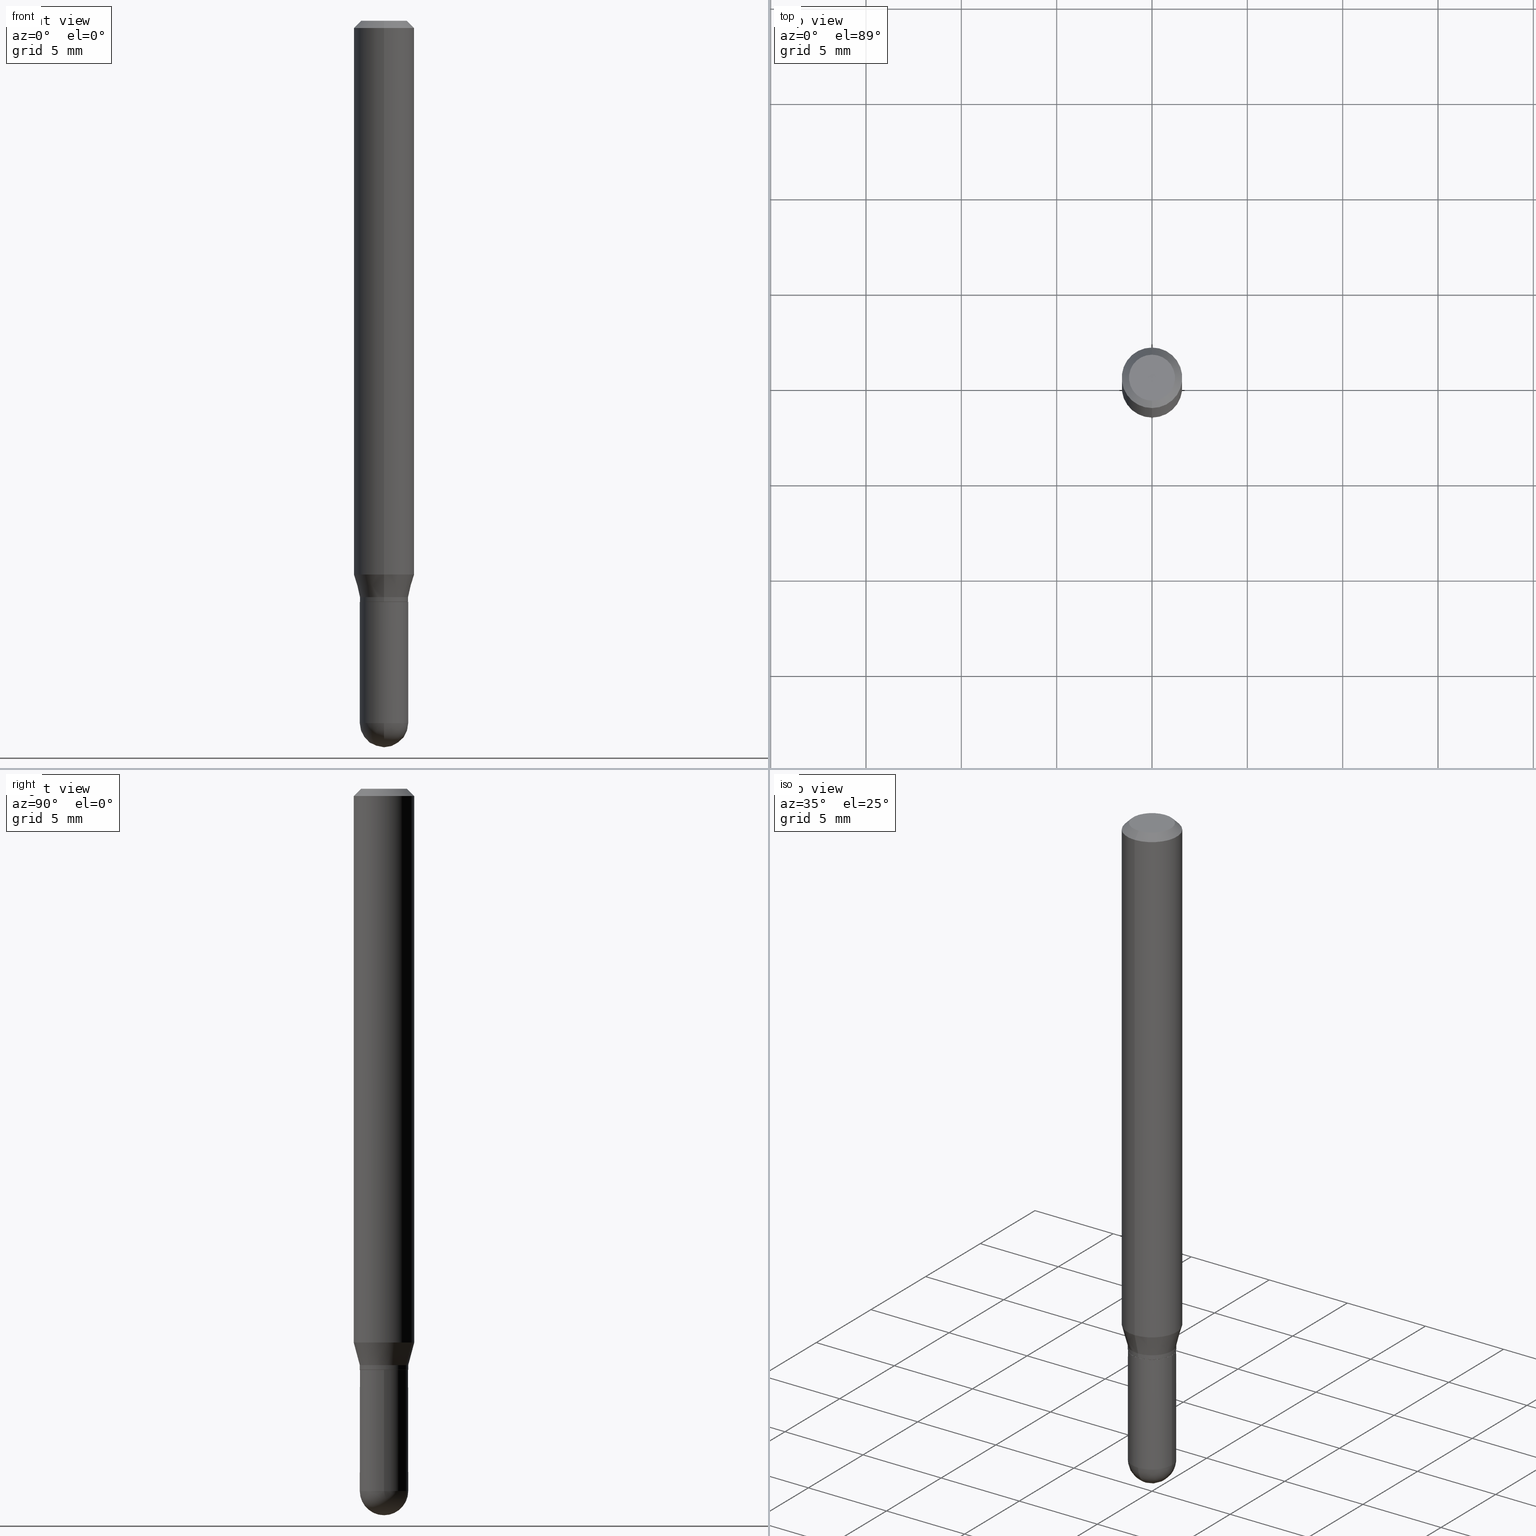
[diagram: canonical four-view strip — front | top / right | iso, engineering-drawing reading convention]
A machine part, canonical four-view strip (front | top / right | iso — engineering-drawing reading convention). The complete STEP part file that produces these views, byte-faithful:
ISO-10303-21;
HEADER;
FILE_DESCRIPTION (( 'STEP AP203' ),
    '1' );
FILE_NAME ('04449.STEP',
    '2024-03-08T19:38:17',
    ( '' ),
    ( '' ),
    'SwSTEP 2.0',
    'SolidWorks 2023',
    '' );
FILE_SCHEMA (( 'CONFIG_CONTROL_DESIGN' ));
ENDSEC;

DATA;
#1 = APPLICATION_CONTEXT ( 'configuration controlled 3d designs of mechanical parts and assemblies' ) ;
#2 = ADVANCED_FACE ( 'NONE', ( #111 ), #346, .T. ) ;
#3 = ORIENTED_EDGE ( 'NONE', *, *, #288, .F. ) ;
#4 = FACE_OUTER_BOUND ( 'NONE', #186, .T. ) ;
#5 = LINE ( 'NONE', #118, #454 ) ;
#6 = CIRCLE ( 'NONE', #475, 0.04999999999999999584 ) ;
#7 = EDGE_CURVE ( 'NONE', #503, #153, #67, .T. ) ;
#8 = VERTEX_POINT ( 'NONE', #463 ) ;
#9 = ORIENTED_EDGE ( 'NONE', *, *, #297, .F. ) ;
#10 = DIRECTION ( 'NONE',  ( -2.445402867913384779E-29, 3.491575766201267725E-15, 1.000000000000000000 ) ) ;
#11 = EDGE_LOOP ( 'NONE', ( #486, #381 ) ) ;
#12 = ORIENTED_EDGE ( 'NONE', *, *, #362, .T. ) ;
#13 = DIRECTION ( 'NONE',  ( -6.982962677686265133E-15, -1.000000000000000000, 5.463695987328524859E-15 ) ) ;
#14 = CIRCLE ( 'NONE', #175, 0.05000000000000006523 ) ;
#15 = CIRCLE ( 'NONE', #54, 0.04999999999999999584 ) ;
#16 = FACE_OUTER_BOUND ( 'NONE', #61, .T. ) ;
#17 = ORIENTED_EDGE ( 'NONE', *, *, #41, .T. ) ;
#18 = DIRECTION ( 'NONE',  ( -2.445402867913384779E-29, 3.491575766201267725E-15, 1.000000000000000000 ) ) ;
#19 = DATE_AND_TIME ( #98, #214 ) ;
#20 = DIRECTION ( 'NONE',  ( 1.000000000000000000, -6.982962677686275388E-15, 0.000000000000000000 ) ) ;
#21 = ADVANCED_FACE ( 'NONE', ( #102 ), #421, .T. ) ;
#22 = CONICAL_SURFACE ( 'NONE', #412, 0.05000000000000006523, 0.2617993877991506846 ) ;
#23 = ORIENTED_EDGE ( 'NONE', *, *, #173, .T. ) ;
#24 = DIRECTION ( 'NONE',  ( 0.000000000000000000, 0.000000000000000000, 1.000000000000000000 ) ) ;
#25 = PERSON_AND_ORGANIZATION ( #278, #31 ) ;
#26 = PERSON_AND_ORGANIZATION_ROLE ( 'design_owner' ) ;
#27 = APPROVAL_DATE_TIME ( #19, #141 ) ;
#28 = EDGE_CURVE ( 'NONE', #380, #303, #374, .T. ) ;
#29 = APPROVAL_PERSON_ORGANIZATION ( #429, #162, #195 ) ;
#30 = ADVANCED_FACE ( 'NONE', ( #259 ), #76, .T. ) ;
#31 = ORGANIZATION ( 'UNSPECIFIED', 'UNSPECIFIED', '' ) ;
#32 = DIRECTION ( 'NONE',  ( 5.024295867788190974E-15, 0.7071067811865681119, 0.7071067811865270336 ) ) ;
#33 = COORDINATED_UNIVERSAL_TIME_OFFSET ( 5, 0, .BEHIND. ) ;
#34 = VERTEX_POINT ( 'NONE', #46 ) ;
#35 = DIRECTION ( 'NONE',  ( 1.000000000000000000, -6.982962677686275388E-15, 0.000000000000000000 ) ) ;
#36 = AXIS2_PLACEMENT_3D ( 'NONE', #135, #296, #87 ) ;
#37 = DIRECTION ( 'NONE',  ( -4.937700262164674260E-15, -0.7071067811865632269, 0.7071067811865319186 ) ) ;
#38 = CARTESIAN_POINT ( 'NONE',  ( 1.601634918364404677E-45, -2.286833691347816108E-31, -6.549574875288539984E-17 ) ) ;
#39 = CARTESIAN_POINT ( 'NONE',  ( 3.552713678800795963E-16, 0.04999999999999590883, -1.190000000000000391 ) ) ;
#40 = DIRECTION ( 'NONE',  ( -2.445402867913384779E-29, 3.491575766201267725E-15, 1.000000000000000000 ) ) ;
#41 = EDGE_CURVE ( 'NONE', #42, #382, #210, .T. ) ;
#42 = VERTEX_POINT ( 'NONE', #448 ) ;
#43 = DIRECTION ( 'NONE',  ( -2.445402867913384779E-29, 3.491575766201267725E-15, 1.000000000000000000 ) ) ;
#44 = CARTESIAN_POINT ( 'NONE',  ( -0.04999999999999999584, 3.552713678800500634E-16, -2.459467545127452961E-30 ) ) ;
#45 = ORIENTED_EDGE ( 'NONE', *, *, #508, .F. ) ;
#46 = CARTESIAN_POINT ( 'NONE',  ( 3.534950110406793936E-16, 0.04949999999999581124, -1.200000000000000400 ) ) ;
#47 = LOCAL_TIME ( 14, 38, 17.00000000000000000, #33 ) ;
#48 = ORIENTED_EDGE ( 'NONE', *, *, #41, .F. ) ;
#49 = COORDINATED_UNIVERSAL_TIME_OFFSET ( 5, 0, .BEHIND. ) ;
#50 = ADVANCED_FACE ( 'NONE', ( #400 ), #326, .T. ) ;
#51 = PERSON_AND_ORGANIZATION ( #278, #31 ) ;
#52 = DIRECTION ( 'NONE',  ( -2.445468806185136597E-29, 3.491481338843145583E-15, 1.000000000000000000 ) ) ;
#53 = AXIS2_PLACEMENT_3D ( 'NONE', #56, #200, #137 ) ;
#54 = AXIS2_PLACEMENT_3D ( 'NONE', #359, #324, #330 ) ;
#55 = ORIENTED_EDGE ( 'NONE', *, *, #362, .F. ) ;
#56 = CARTESIAN_POINT ( 'NONE',  ( 0.000000000000000000, 0.000000000000000000, 0.000000000000000000 ) ) ;
#57 =( LENGTH_UNIT ( ) NAMED_UNIT ( * ) SI_UNIT ( $, .METRE. ) );
#58 = ADVANCED_FACE ( 'NONE', ( #289 ), #406, .T. ) ;
#59 = DIRECTION ( 'NONE',  ( 1.000000000000000000, 0.000000000000000000, 0.000000000000000000 ) ) ;
#60 = CLOSED_SHELL ( 'NONE', ( #21, #30, #372, #50, #440, #310, #398, #239, #158, #129, #261, #461 ) ) ;
#61 = EDGE_LOOP ( 'NONE', ( #365, #231, #395, #136 ) ) ;
#62 = VECTOR ( 'NONE', #294, 39.37007874015748143 ) ;
#63 = CARTESIAN_POINT ( 'NONE',  ( 3.552713678800795963E-16, 0.04999999999999583944, -1.199500000000000233 ) ) ;
#64 = PRODUCT_RELATED_PRODUCT_CATEGORY ( 'detail', '', ( #108 ) ) ;
#65 = ORIENTED_EDGE ( 'NONE', *, *, #225, .T. ) ;
#66 = DIRECTION ( 'NONE',  ( -2.445402867913384779E-29, 3.491575766201267725E-15, 1.000000000000000000 ) ) ;
#67 = CIRCLE ( 'NONE', #401, 0.06250000000000000000 ) ;
#68 = CIRCLE ( 'NONE', #402, 0.04999999999999999584 ) ;
#69 = LINE ( 'NONE', #157, #312 ) ;
#70 = CARTESIAN_POINT ( 'NONE',  ( 2.910029412816928193E-29, -4.154975161779508885E-15, -1.190000000000000169 ) ) ;
#71 = CARTESIAN_POINT ( 'NONE',  ( 4.440892098500907193E-16, 0.06249999999999995143, -0.01500000000000028394 ) ) ;
#72 = DIRECTION ( 'NONE',  ( -6.982962677686265133E-15, -1.000000000000000000, 2.731847993664259669E-15 ) ) ;
#73 = EDGE_LOOP ( 'NONE', ( #280, #12, #456, #45 ) ) ;
#74 = ORIENTED_EDGE ( 'NONE', *, *, #479, .F. ) ;
#75 = EDGE_CURVE ( 'NONE', #169, #442, #165, .T. ) ;
#76 = CONICAL_SURFACE ( 'NONE', #446, 0.04950000000000000233, 0.7853981633974739252 ) ;
#77 = DIRECTION ( 'NONE',  ( 6.982962677686265922E-15, 1.000000000000000000, -3.483106191921935554E-15 ) ) ;
#78 = CIRCLE ( 'NONE', #140, 0.05000000000000000278 ) ;
#79 = DIRECTION ( 'NONE',  ( -6.982962677686265922E-15, -1.000000000000000000, 3.483106191921935554E-15 ) ) ;
#80 = DIRECTION ( 'NONE',  ( -2.445402867913384779E-29, 3.491575766201267725E-15, 1.000000000000000000 ) ) ;
#81 = CARTESIAN_POINT ( 'NONE',  ( 0.000000000000000000, 0.000000000000000000, 0.000000000000000000 ) ) ;
#82 = CC_DESIGN_APPROVAL ( #162, ( #287 ) ) ;
#83 = CARTESIAN_POINT ( 'NONE',  ( 3.545929768968448850E-29, -5.062647941322561509E-15, -1.450000000000000178 ) ) ;
#84 = EDGE_CURVE ( 'NONE', #303, #380, #14, .T. ) ;
#85 = ORIENTED_EDGE ( 'NONE', *, *, #445, .T. ) ;
#86 = CARTESIAN_POINT ( 'NONE',  ( 3.541653937522551347E-29, -5.068771175318297793E-15, -1.450000000000000178 ) ) ;
#87 = DIRECTION ( 'NONE',  ( -6.982962677686265922E-15, -1.000000000000000000, 3.491575766201267725E-15 ) ) ;
#88 = CARTESIAN_POINT ( 'NONE',  ( 3.668104301870093617E-31, -5.237363649301924489E-17, -0.01500000000000006710 ) ) ;
#89 = ORIENTED_EDGE ( 'NONE', *, *, #150, .F. ) ;
#90 = CARTESIAN_POINT ( 'NONE',  ( -4.287811248607203282E-16, -0.06250000000000005551, -0.01499999999999984852 ) ) ;
#91 = ORIENTED_EDGE ( 'NONE', *, *, #495, .F. ) ;
#92 = CARTESIAN_POINT ( 'NONE',  ( 2.933260740062105209E-29, -4.188145131558421653E-15, -1.199500000000000233 ) ) ;
#93 = CIRCLE ( 'NONE', #238, 0.05000000000000000971 ) ;
#94 = EDGE_CURVE ( 'NONE', #351, #407, #93, .T. ) ;
#95 = DIRECTION ( 'NONE',  ( 2.445402867913384779E-29, -3.491575766201267725E-15, -1.000000000000000000 ) ) ;
#96 = LOCAL_TIME ( 14, 38, 17.00000000000000000, #49 ) ;
#97 = DIMENSIONAL_EXPONENTS ( 1.000000000000000000, 0.000000000000000000, 0.000000000000000000, 0.000000000000000000, 0.000000000000000000, 0.000000000000000000, 0.000000000000000000 ) ;
#98 = CALENDAR_DATE ( 2024, 8, 3 ) ;
#99 = CALENDAR_DATE ( 2024, 8, 3 ) ;
#100 = EDGE_LOOP ( 'NONE', ( #423, #201, #510, #366 ) ) ;
#101 = AXIS2_PLACEMENT_3D ( 'NONE', #316, #430, #437 ) ;
#102 = FACE_OUTER_BOUND ( 'NONE', #73, .T. ) ;
#103 = ORIENTED_EDGE ( 'NONE', *, *, #344, .T. ) ;
#104 = ORIENTED_EDGE ( 'NONE', *, *, #283, .T. ) ;
#105 = APPROVAL_STATUS ( 'not_yet_approved' ) ;
#106 = ORIENTED_EDGE ( 'NONE', *, *, #225, .F. ) ;
#107 = EDGE_CURVE ( 'NONE', #228, #279, #166, .T. ) ;
#108 = PRODUCT ( '04449', '04449', '', ( #302 ) ) ;
#109 = PERSON_AND_ORGANIZATION ( #278, #31 ) ;
#110 =( CONVERSION_BASED_UNIT ( 'INCH', #388 ) LENGTH_UNIT ( ) NAMED_UNIT ( #97 ) );
#111 = FACE_OUTER_BOUND ( 'NONE', #268, .T. ) ;
#112 = CONICAL_SURFACE ( 'NONE', #272, 0.06250000000000000000, 0.7853981633974483900 ) ;
#113 = EDGE_CURVE ( 'NONE', #120, #407, #68, .T. ) ;
#114 = PRODUCT_DEFINITION_FORMATION_WITH_SPECIFIED_SOURCE ( 'ANY', '', #108, .NOT_KNOWN. ) ;
#115 = EDGE_LOOP ( 'NONE', ( #89, #281, #375, #106 ) ) ;
#116 = DIRECTION ( 'NONE',  ( 1.000000000000000000, -6.982962677686274599E-15, 0.000000000000000000 ) ) ;
#117 = DIRECTION ( 'NONE',  ( 4.937700262164548042E-15, 0.7071067811865451302, -0.7071067811865499042 ) ) ;
#118 = CARTESIAN_POINT ( 'NONE',  ( 3.517186542012788950E-16, 0.04949999999999581124, -1.200000000000000400 ) ) ;
#119 = ORIENTED_EDGE ( 'NONE', *, *, #192, .T. ) ;
#120 = VERTEX_POINT ( 'NONE', #224 ) ;
#121 = CARTESIAN_POINT ( 'NONE',  ( 2.934483441496062072E-29, -4.189890919441521744E-15, -1.200000000000000178 ) ) ;
#122 = EDGE_CURVE ( 'NONE', #228, #471, #131, .T. ) ;
#123 = CONICAL_SURFACE ( 'NONE', #242, 0.05000000000000006523, 0.2617993877991506846 ) ;
#124 = APPROVAL_DATE_TIME ( #243, #162 ) ;
#125 = DIRECTION ( 'NONE',  ( 1.000000000000000000, -7.105427357601001070E-15, 4.926315508542082329E-29 ) ) ;
#126 = CARTESIAN_POINT ( 'NONE',  ( 3.668104301870093617E-31, -5.237363649301924489E-17, -0.01500000000000006710 ) ) ;
#127 = ORIENTED_EDGE ( 'NONE', *, *, #297, .T. ) ;
#128 = DIRECTION ( 'NONE',  ( -6.982962677686265922E-15, -1.000000000000000000, 3.491575766201267725E-15 ) ) ;
#129 = ADVANCED_FACE ( 'NONE', ( #410 ), #493, .F. ) ;
#130 = AXIS2_PLACEMENT_3D ( 'NONE', #121, #361, #248 ) ;
#131 = LINE ( 'NONE', #450, #308 ) ;
#132 = ORIENTED_EDGE ( 'NONE', *, *, #7, .F. ) ;
#133 = CYLINDRICAL_SURFACE ( 'NONE', #223, 0.06250000000000000000 ) ;
#134 = DIRECTION ( 'NONE',  ( -2.445402867913384779E-29, 3.491575766201267725E-15, 1.000000000000000000 ) ) ;
#135 = CARTESIAN_POINT ( 'NONE',  ( 2.934483441496062072E-29, -4.189890919441521744E-15, -1.200000000000000178 ) ) ;
#136 = ORIENTED_EDGE ( 'NONE', *, *, #217, .F. ) ;
#137 = DIRECTION ( 'NONE',  ( -6.982962677686265133E-15, -1.000000000000000000, 3.491575766201268120E-15 ) ) ;
#138 = CARTESIAN_POINT ( 'NONE',  ( 3.545929768968448850E-29, -5.062647941322561509E-15, -1.450000000000000178 ) ) ;
#139 = PLANE ( 'NONE',  #269 ) ;
#140 = AXIS2_PLACEMENT_3D ( 'NONE', #315, #477, #116 ) ;
#141 = APPROVAL ( #105, 'UNSPECIFIED' ) ;
#142 = APPROVAL_DATE_TIME ( #184, #427 ) ;
#143 = PERSON_AND_ORGANIZATION_ROLE ( 'classification_officer' ) ;
#144 = EDGE_CURVE ( 'NONE', #42, #247, #419, .T. ) ;
#145 = AXIS2_PLACEMENT_3D ( 'NONE', #409, #80, #378 ) ;
#146 = VECTOR ( 'NONE', #484, 39.37007874015748143 ) ;
#147 =( NAMED_UNIT ( * ) PLANE_ANGLE_UNIT ( ) SI_UNIT ( $, .RADIAN. ) );
#148 = PERSON_AND_ORGANIZATION_ROLE ( 'design_supplier' ) ;
#149 = CARTESIAN_POINT ( 'NONE',  ( 3.541653937522551347E-29, -5.068771175318297793E-15, -1.450000000000000178 ) ) ;
#150 = EDGE_CURVE ( 'NONE', #503, #247, #286, .T. ) ;
#151 = DIRECTION ( 'NONE',  ( 1.000000000000000000, -6.982962677686274599E-15, 0.000000000000000000 ) ) ;
#152 = CIRCLE ( 'NONE', #511, 0.06250000000000000000 ) ;
#153 = VERTEX_POINT ( 'NONE', #250 ) ;
#154 = CARTESIAN_POINT ( 'NONE',  ( 3.552713678800855128E-16, 0.04999999999999494432, -1.450000000000000400 ) ) ;
#155 = CARTESIAN_POINT ( 'NONE',  ( 2.934483441496062072E-29, -4.189890919441521744E-15, -1.200000000000000178 ) ) ;
#156 = ORIENTED_EDGE ( 'NONE', *, *, #288, .T. ) ;
#157 = CARTESIAN_POINT ( 'NONE',  ( -3.456566525454408447E-16, -0.04950000000000419342, -1.199999999999999956 ) ) ;
#158 = ADVANCED_FACE ( 'NONE', ( #4 ), #198, .F. ) ;
#159 = ORIENTED_EDGE ( 'NONE', *, *, #192, .F. ) ;
#160 = DIRECTION ( 'NONE',  ( 1.000000000000000000, -6.982962677686265133E-15, 4.883557194083112340E-29 ) ) ;
#161 = LINE ( 'NONE', #404, #482 ) ;
#162 = APPROVAL ( #352, 'UNSPECIFIED' ) ;
#163 = CARTESIAN_POINT ( 'NONE',  ( 3.661789462108859761E-29, -5.246406859258323786E-15, -1.500000000000000222 ) ) ;
#164 = DIRECTION ( 'NONE',  ( 6.982962677686265922E-15, 1.000000000000000000, -3.491575766201267725E-15 ) ) ;
#165 = CIRCLE ( 'NONE', #237, 0.05000000000000006523 ) ;
#166 = CIRCLE ( 'NONE', #354, 0.04999999999999999584 ) ;
#167 = LINE ( 'NONE', #44, #347 ) ;
#168 = DIRECTION ( 'NONE',  ( 1.839019923739603076E-15, 0.2588190451025253469, 0.9659258262890670910 ) ) ;
#169 = VERTEX_POINT ( 'NONE', #434 ) ;
#170 = SPHERICAL_SURFACE ( 'NONE', #211, 0.05000000000000000971 ) ;
#171 = DIRECTION ( 'NONE',  ( -2.445402867913384779E-29, 3.491575766201267725E-15, 1.000000000000000000 ) ) ;
#172 = DIRECTION ( 'NONE',  ( 1.000000000000000000, -6.982962677686275388E-15, 0.000000000000000000 ) ) ;
#173 = EDGE_CURVE ( 'NONE', #432, #380, #69, .T. ) ;
#174 = CARTESIAN_POINT ( 'NONE',  ( 0.000000000000000000, 0.000000000000000000, 0.000000000000000000 ) ) ;
#175 = AXIS2_PLACEMENT_3D ( 'NONE', #424, #188, #264 ) ;
#176 = ORIENTED_EDGE ( 'NONE', *, *, #479, .T. ) ;
#177 = DIRECTION ( 'NONE',  ( -6.982962677686265133E-15, -1.000000000000000000, 2.731847993664259669E-15 ) ) ;
#178 = EDGE_CURVE ( 'NONE', #442, #153, #161, .T. ) ;
#179 = EDGE_LOOP ( 'NONE', ( #104, #452, #392, #219 ) ) ;
#180 = EDGE_LOOP ( 'NONE', ( #190, #119, #196, #215 ) ) ;
#181 = MANIFOLD_SOLID_BREP ( 'Body-Move/Copy2[2]', #60 ) ;
#182 = AXIS2_PLACEMENT_3D ( 'NONE', #126, #447, #79 ) ;
#183 = ORIENTED_EDGE ( 'NONE', *, *, #144, .T. ) ;
#184 = DATE_AND_TIME ( #384, #470 ) ;
#185 = CC_DESIGN_DATE_AND_TIME_ASSIGNMENT ( #386, #341, ( #321 ) ) ;
#186 = EDGE_LOOP ( 'NONE', ( #17, #236 ) ) ;
#187 = FACE_OUTER_BOUND ( 'NONE', #339, .T. ) ;
#188 = DIRECTION ( 'NONE',  ( -2.445402867913384779E-29, 3.491575766201267725E-15, 1.000000000000000000 ) ) ;
#189 = CONICAL_SURFACE ( 'NONE', #438, 0.06250000000000000000, 0.7853981633974483900 ) ;
#190 = ORIENTED_EDGE ( 'NONE', *, *, #233, .T. ) ;
#191 =( GEOMETRIC_REPRESENTATION_CONTEXT ( 3 ) GLOBAL_UNCERTAINTY_ASSIGNED_CONTEXT ( ( #304 ) ) GLOBAL_UNIT_ASSIGNED_CONTEXT ( ( #110, #147, #340 ) ) REPRESENTATION_CONTEXT ( 'NONE', 'WORKASPACE' ) );
#192 = EDGE_CURVE ( 'NONE', #169, #503, #254, .T. ) ;
#193 = DIRECTION ( 'NONE',  ( -6.982962677686265922E-15, -1.000000000000000000, 2.759442417842689940E-15 ) ) ;
#194 = CARTESIAN_POINT ( 'NONE',  ( 3.541653937522551347E-29, -5.068771175318297793E-15, -1.450000000000000178 ) ) ;
#195 = APPROVAL_ROLE ( '' ) ;
#196 = ORIENTED_EDGE ( 'NONE', *, *, #283, .F. ) ;
#197 = DIRECTION ( 'NONE',  ( -2.445468806185136597E-29, 3.491481338843145583E-15, 1.000000000000000000 ) ) ;
#198 = PLANE ( 'NONE',  #417 ) ;
#199 = ORIENTED_EDGE ( 'NONE', *, *, #249, .F. ) ;
#200 = DIRECTION ( 'NONE',  ( -2.445402867913384779E-29, 3.491575766201267725E-15, 1.000000000000000000 ) ) ;
#201 = ORIENTED_EDGE ( 'NONE', *, *, #249, .T. ) ;
#202 = DIRECTION ( 'NONE',  ( -6.982962677686266711E-15, -1.000000000000000000, 3.491575766201268120E-15 ) ) ;
#203 = DIRECTION ( 'NONE',  ( -1.807323732225332900E-15, -0.2588190451025185745, 0.9659258262890689783 ) ) ;
#204 = CC_DESIGN_PERSON_AND_ORGANIZATION_ASSIGNMENT ( #25, #143, ( #287 ) ) ;
#205 = VERTEX_POINT ( 'NONE', #368 ) ;
#206 = CARTESIAN_POINT ( 'NONE',  ( -3.491481338842845914E-16, -0.05000000000000422162, -1.189999999999999947 ) ) ;
#207 = CARTESIAN_POINT ( 'NONE',  ( 0.04999999999999999584, -4.975360907851482386E-15, -1.450000000000000178 ) ) ;
#208 = DIRECTION ( 'NONE',  ( -2.445468806185136597E-29, 3.491481338843145583E-15, 1.000000000000000000 ) ) ;
#209 = LINE ( 'NONE', #487, #333 ) ;
#210 = CIRCLE ( 'NONE', #222, 0.04749999999999999362 ) ;
#211 = AXIS2_PLACEMENT_3D ( 'NONE', #86, #160, #13 ) ;
#212 = CARTESIAN_POINT ( 'NONE',  ( -3.491481338842846900E-16, -0.05000000000000429101, -1.199500000000000011 ) ) ;
#213 = CARTESIAN_POINT ( 'NONE',  ( 2.934483441496062072E-29, -4.189890919441521744E-15, -1.200000000000000178 ) ) ;
#214 = LOCAL_TIME ( 14, 38, 17.00000000000000000, #472 ) ;
#215 = ORIENTED_EDGE ( 'NONE', *, *, #178, .F. ) ;
#216 = FACE_OUTER_BOUND ( 'NONE', #115, .T. ) ;
#217 = EDGE_CURVE ( 'NONE', #407, #228, #15, .T. ) ;
#218 = DIRECTION ( 'NONE',  ( 2.445402867913384779E-29, -3.491575766201267725E-15, -1.000000000000000000 ) ) ;
#219 = ORIENTED_EDGE ( 'NONE', *, *, #455, .F. ) ;
#220 = DATE_TIME_ROLE ( 'classification_date' ) ;
#221 = APPROVAL_STATUS ( 'not_yet_approved' ) ;
#222 = AXIS2_PLACEMENT_3D ( 'NONE', #481, #489, #246 ) ;
#223 = AXIS2_PLACEMENT_3D ( 'NONE', #81, #325, #128 ) ;
#224 = CARTESIAN_POINT ( 'NONE',  ( -0.04999999999999999584, -4.270941406087117853E-15, -1.450000000000000178 ) ) ;
#225 = EDGE_CURVE ( 'NONE', #247, #205, #504, .T. ) ;
#226 = SECURITY_CLASSIFICATION_LEVEL ( 'unclassified' ) ;
#227 = CC_DESIGN_APPROVAL ( #141, ( #321 ) ) ;
#228 = VERTEX_POINT ( 'NONE', #207 ) ;
#229 = PERSON_AND_ORGANIZATION ( #278, #31 ) ;
#230 = AXIS2_PLACEMENT_3D ( 'NONE', #240, #509, #151 ) ;
#231 = ORIENTED_EDGE ( 'NONE', *, *, #405, .T. ) ;
#232 = EDGE_LOOP ( 'NONE', ( #127, #176, #3, #319, #499 ) ) ;
#233 = EDGE_CURVE ( 'NONE', #442, #169, #284, .T. ) ;
#234 = FACE_OUTER_BOUND ( 'NONE', #323, .T. ) ;
#235 = CARTESIAN_POINT ( 'NONE',  ( 2.795949815966586689E-29, -3.992090934805268483E-15, -1.143349364905389631 ) ) ;
#236 = ORIENTED_EDGE ( 'NONE', *, *, #495, .T. ) ;
#237 = AXIS2_PLACEMENT_3D ( 'NONE', #293, #260, #411 ) ;
#238 = AXIS2_PLACEMENT_3D ( 'NONE', #194, #267, #391 ) ;
#239 = ADVANCED_FACE ( 'NONE', ( #420 ), #189, .T. ) ;
#240 = CARTESIAN_POINT ( 'NONE',  ( 2.934562567422164701E-29, -4.189777606611775804E-15, -1.200000000000000178 ) ) ;
#241 = CC_DESIGN_APPROVAL ( #427, ( #114 ) ) ;
#242 = AXIS2_PLACEMENT_3D ( 'NONE', #258, #43, #494 ) ;
#243 = DATE_AND_TIME ( #480, #47 ) ;
#244 = ORIENTED_EDGE ( 'NONE', *, *, #75, .F. ) ;
#245 = AXIS2_PLACEMENT_3D ( 'NONE', #413, #18, #370 ) ;
#246 = DIRECTION ( 'NONE',  ( -6.982962677686266711E-15, -1.000000000000000000, 3.491575766201268120E-15 ) ) ;
#247 = VERTEX_POINT ( 'NONE', #71 ) ;
#248 = DIRECTION ( 'NONE',  ( -6.982962677686265922E-15, -1.000000000000000000, 2.759442417842689940E-15 ) ) ;
#249 = EDGE_CURVE ( 'NONE', #34, #303, #5, .T. ) ;
#250 = CARTESIAN_POINT ( 'NONE',  ( -4.364351673553637142E-16, -0.06250000000000399680, -1.143349364905389409 ) ) ;
#251 = CONICAL_SURFACE ( 'NONE', #299, 0.04950000000000000233, 0.7853981633974739252 ) ;
#252 = EDGE_LOOP ( 'NONE', ( #55, #313, #317, #244 ) ) ;
#253 = CARTESIAN_POINT ( 'NONE',  ( 0.05000000000000000278, -4.538925740496089139E-15, -1.200000000000000178 ) ) ;
#254 = LINE ( 'NONE', #39, #292 ) ;
#255 = AXIS2_PLACEMENT_3D ( 'NONE', #174, #24, #59 ) ;
#256 = CARTESIAN_POINT ( 'NONE',  ( -3.456566525454408447E-16, -0.04950000000000419342, -1.199999999999999956 ) ) ;
#257 = DIRECTION ( 'NONE',  ( -2.445468806185136877E-29, 3.491481338843145188E-15, 1.000000000000000000 ) ) ;
#258 = CARTESIAN_POINT ( 'NONE',  ( 2.910029412816928193E-29, -4.154975161779508885E-15, -1.190000000000000169 ) ) ;
#259 = FACE_OUTER_BOUND ( 'NONE', #100, .T. ) ;
#260 = DIRECTION ( 'NONE',  ( -2.445402867913384779E-29, 3.491575766201267725E-15, 1.000000000000000000 ) ) ;
#261 = ADVANCED_FACE ( 'NONE', ( #356 ), #251, .T. ) ;
#262 = AXIS2_PLACEMENT_3D ( 'NONE', #70, #171, #177 ) ;
#263 = LINE ( 'NONE', #451, #383 ) ;
#264 = DIRECTION ( 'NONE',  ( -6.982962677686265133E-15, -1.000000000000000000, 2.731847993664259669E-15 ) ) ;
#265 = CIRCLE ( 'NONE', #459, 0.04950000000000000233 ) ;
#266 = CARTESIAN_POINT ( 'NONE',  ( 2.934483441496062072E-29, -4.189890919441521744E-15, -1.200000000000000178 ) ) ;
#267 = DIRECTION ( 'NONE',  ( -1.000000000000000000, 6.982962677686265922E-15, -4.883557194083112340E-29 ) ) ;
#268 = EDGE_LOOP ( 'NONE', ( #441, #512, #334, #9 ) ) ;
#269 = AXIS2_PLACEMENT_3D ( 'NONE', #415, #322, #403 ) ;
#270 = CC_DESIGN_PERSON_AND_ORGANIZATION_ASSIGNMENT ( #109, #26, ( #108 ) ) ;
#271 = PERSON_AND_ORGANIZATION_ROLE ( 'creator' ) ;
#272 = AXIS2_PLACEMENT_3D ( 'NONE', #444, #95, #77 ) ;
#273 = DIRECTION ( 'NONE',  ( 1.000000000000000000, -6.982962677686265133E-15, 4.883557194083112340E-29 ) ) ;
#274 = COORDINATED_UNIVERSAL_TIME_OFFSET ( 5, 0, .BEHIND. ) ;
#275 = EDGE_CURVE ( 'NONE', #432, #34, #343, .T. ) ;
#276 = DATE_AND_TIME ( #467, #476 ) ;
#277 = CARTESIAN_POINT ( 'NONE',  ( 3.545929768968448850E-29, -5.062647941322561509E-15, -1.450000000000000178 ) ) ;
#278 = PERSON ( 'UNSPECIFIED', 'UNSPECIFIED', 'UNSPECIFIED', ('UNSPECIFIED'), ('UNSPECIFIED'), ('UNSPECIFIED') ) ;
#279 = VERTEX_POINT ( 'NONE', #154 ) ;
#280 = ORIENTED_EDGE ( 'NONE', *, *, #28, .T. ) ;
#281 = ORIENTED_EDGE ( 'NONE', *, *, #7, .T. ) ;
#282 = LINE ( 'NONE', #90, #62 ) ;
#283 = EDGE_CURVE ( 'NONE', #153, #503, #390, .T. ) ;
#284 = CIRCLE ( 'NONE', #262, 0.05000000000000006523 ) ;
#285 = CARTESIAN_POINT ( 'NONE',  ( 2.910029412816928193E-29, -4.154975161779508885E-15, -1.190000000000000169 ) ) ;
#286 = LINE ( 'NONE', #320, #146 ) ;
#287 = SECURITY_CLASSIFICATION ( '', '', #226 ) ;
#288 = EDGE_CURVE ( 'NONE', #471, #8, #428, .T. ) ;
#289 = FACE_OUTER_BOUND ( 'NONE', #232, .T. ) ;
#290 = CARTESIAN_POINT ( 'NONE',  ( -3.491481338842778368E-16, -0.05000000000000506817, -1.449999999999999734 ) ) ;
#291 = CARTESIAN_POINT ( 'NONE',  ( 3.316907271900976096E-16, 0.04749999999999999362, -1.985977232710029220E-16 ) ) ;
#292 = VECTOR ( 'NONE', #168, 39.37007874015748143 ) ;
#293 = CARTESIAN_POINT ( 'NONE',  ( 2.910029412816928193E-29, -4.154975161779508885E-15, -1.190000000000000169 ) ) ;
#294 = DIRECTION ( 'NONE',  ( -4.851104656540964275E-15, -0.7071067811865500152, -0.7071067811865450192 ) ) ;
#295 = DIRECTION ( 'NONE',  ( -6.982962677686265133E-15, -1.000000000000000000, 2.731847993664259669E-15 ) ) ;
#296 = DIRECTION ( 'NONE',  ( -2.445402867913384219E-29, 3.491575766201267725E-15, 1.000000000000000000 ) ) ;
#297 = EDGE_CURVE ( 'NONE', #279, #120, #6, .T. ) ;
#298 = CARTESIAN_POINT ( 'NONE',  ( -3.773273898774340269E-16, -0.04749999999999999362, 1.003541001416748038E-16 ) ) ;
#299 = AXIS2_PLACEMENT_3D ( 'NONE', #155, #66, #193 ) ;
#300 = CARTESIAN_POINT ( 'NONE',  ( 3.668104301870093617E-31, -5.237363649301924489E-17, -0.01500000000000006710 ) ) ;
#301 = CC_DESIGN_PERSON_AND_ORGANIZATION_ASSIGNMENT ( #418, #148, ( #114 ) ) ;
#302 = MECHANICAL_CONTEXT ( 'NONE', #491, 'mechanical' ) ;
#303 = VERTEX_POINT ( 'NONE', #63 ) ;
#304 = UNCERTAINTY_MEASURE_WITH_UNIT (LENGTH_MEASURE( 1.000000000000000082E-05 ), #110, 'distance_accuracy_value', 'NONE');
#305 = PERSON_AND_ORGANIZATION ( #278, #31 ) ;
#306 = ORIENTED_EDGE ( 'NONE', *, *, #329, .F. ) ;
#307 = COORDINATED_UNIVERSAL_TIME_OFFSET ( 5, 0, .BEHIND. ) ;
#308 = VECTOR ( 'NONE', #257, 39.37007874015748143 ) ;
#309 = EDGE_LOOP ( 'NONE', ( #199, #85, #23, #397 ) ) ;
#310 = ADVANCED_FACE ( 'NONE', ( #234 ), #22, .T. ) ;
#311 = PERSON_AND_ORGANIZATION_ROLE ( 'creator' ) ;
#312 = VECTOR ( 'NONE', #37, 39.37007874015748143 ) ;
#313 = ORIENTED_EDGE ( 'NONE', *, *, #84, .T. ) ;
#314 = ADVANCED_FACE ( 'NONE', ( #187 ), #399, .T. ) ;
#315 = CARTESIAN_POINT ( 'NONE',  ( 2.934562567422164701E-29, -4.189777606611775804E-15, -1.200000000000000178 ) ) ;
#316 = CARTESIAN_POINT ( 'NONE',  ( 2.795949815966586689E-29, -3.992090934805268483E-15, -1.143349364905389631 ) ) ;
#317 = ORIENTED_EDGE ( 'NONE', *, *, #508, .T. ) ;
#318 = CIRCLE ( 'NONE', #498, 0.05000000000000000971 ) ;
#319 = ORIENTED_EDGE ( 'NONE', *, *, #122, .F. ) ;
#320 = CARTESIAN_POINT ( 'NONE',  ( 4.440892098500625669E-16, 0.06250000000000000000, -2.182234853875792328E-16 ) ) ;
#321 = PRODUCT_DEFINITION ( 'UNKNOWN', '', #114, #350 ) ;
#322 = DIRECTION ( 'NONE',  ( 2.438088387897960049E-29, -3.491481338843145188E-15, -1.000000000000000000 ) ) ;
#323 = EDGE_LOOP ( 'NONE', ( #159, #473, #466, #132 ) ) ;
#324 = DIRECTION ( 'NONE',  ( -2.445468806185136597E-29, 3.491481338843145583E-15, 1.000000000000000000 ) ) ;
#325 = DIRECTION ( 'NONE',  ( -2.445402867913384779E-29, 3.491575766201267725E-15, 1.000000000000000000 ) ) ;
#326 = CYLINDRICAL_SURFACE ( 'NONE', #145, 0.06250000000000000000 ) ;
#327 = ORIENTED_EDGE ( 'NONE', *, *, #416, .T. ) ;
#328 = DIRECTION ( 'NONE',  ( -2.445468806185136877E-29, 3.491481338843145188E-15, 1.000000000000000000 ) ) ;
#329 = EDGE_CURVE ( 'NONE', #8, #471, #78, .T. ) ;
#330 = DIRECTION ( 'NONE',  ( 1.000000000000000000, -6.982962677686275388E-15, 0.000000000000000000 ) ) ;
#331 = CARTESIAN_POINT ( 'NONE',  ( 3.541653937522551347E-29, -5.068771175318297793E-15, -1.450000000000000178 ) ) ;
#332 = DIRECTION ( 'NONE',  ( -6.982962677686265922E-15, -1.000000000000000000, 2.759442417842689940E-15 ) ) ;
#333 = VECTOR ( 'NONE', #10, 39.37007874015748143 ) ;
#334 = ORIENTED_EDGE ( 'NONE', *, *, #113, .F. ) ;
#335 = DIRECTION ( 'NONE',  ( -2.445402867913384779E-29, 3.491575766201267725E-15, 1.000000000000000000 ) ) ;
#336 = DIRECTION ( 'NONE',  ( -2.445468806185136597E-29, 3.491481338843145583E-15, 1.000000000000000000 ) ) ;
#337 = CC_DESIGN_PERSON_AND_ORGANIZATION_ASSIGNMENT ( #305, #271, ( #114 ) ) ;
#338 = DIRECTION ( 'NONE',  ( 6.982962677686265922E-15, 1.000000000000000000, -3.483106191921935554E-15 ) ) ;
#339 = EDGE_LOOP ( 'NONE', ( #74, #500, #457, #345, #306 ) ) ;
#340 =( NAMED_UNIT ( * ) SI_UNIT ( $, .STERADIAN. ) SOLID_ANGLE_UNIT ( ) );
#341 = DATE_TIME_ROLE ( 'creation_date' ) ;
#342 = DIRECTION ( 'NONE',  ( -2.445402867913384779E-29, 3.491575766201267725E-15, 1.000000000000000000 ) ) ;
#343 = CIRCLE ( 'NONE', #130, 0.04950000000000000233 ) ;
#344 = EDGE_CURVE ( 'NONE', #382, #205, #282, .T. ) ;
#345 = ORIENTED_EDGE ( 'NONE', *, *, #122, .T. ) ;
#346 = SPHERICAL_SURFACE ( 'NONE', #426, 0.05000000000000000971 ) ;
#347 = VECTOR ( 'NONE', #328, 39.37007874015748143 ) ;
#348 = DIRECTION ( 'NONE',  ( -2.445402867913384779E-29, 3.491575766201267725E-15, 1.000000000000000000 ) ) ;
#349 = CC_DESIGN_DATE_AND_TIME_ASSIGNMENT ( #276, #220, ( #287 ) ) ;
#350 = DESIGN_CONTEXT ( 'detailed design', #1, 'design' ) ;
#351 = VERTEX_POINT ( 'NONE', #163 ) ;
#352 = APPROVAL_STATUS ( 'not_yet_approved' ) ;
#353 = DIRECTION ( 'NONE',  ( 1.000000000000000000, -6.982962677686265922E-15, 4.876176775795936353E-29 ) ) ;
#354 = AXIS2_PLACEMENT_3D ( 'NONE', #138, #52, #172 ) ;
#355 = DIRECTION ( 'NONE',  ( -6.982962677686265922E-15, -1.000000000000000000, 4.370956789862821150E-15 ) ) ;
#356 = FACE_OUTER_BOUND ( 'NONE', #309, .T. ) ;
#357 = DIRECTION ( 'NONE',  ( -2.445468806185136597E-29, 3.491481338843145583E-15, 1.000000000000000000 ) ) ;
#358 = CARTESIAN_POINT ( 'NONE',  ( 4.364351673553919652E-16, 0.06249999999999995143, -0.01500000000000028394 ) ) ;
#359 = CARTESIAN_POINT ( 'NONE',  ( 3.545929768968448850E-29, -5.062647941322561509E-15, -1.450000000000000178 ) ) ;
#360 = EDGE_LOOP ( 'NONE', ( #156, #501 ) ) ;
#361 = DIRECTION ( 'NONE',  ( -2.445402867913384779E-29, 3.491575766201267725E-15, 1.000000000000000000 ) ) ;
#362 = EDGE_CURVE ( 'NONE', #303, #169, #263, .T. ) ;
#363 = CLOSED_SHELL ( 'NONE', ( #58, #387, #485, #2, #314 ) ) ;
#364 = AXIS2_PLACEMENT_3D ( 'NONE', #483, #197, #353 ) ;
#365 = ORIENTED_EDGE ( 'NONE', *, *, #94, .F. ) ;
#366 = ORIENTED_EDGE ( 'NONE', *, *, #173, .F. ) ;
#367 = CARTESIAN_POINT ( 'NONE',  ( 4.440892098500904235E-16, 0.06249999999999599626, -1.143349364905389853 ) ) ;
#368 = CARTESIAN_POINT ( 'NONE',  ( -4.364351673553912750E-16, -0.06250000000000005551, -0.01499999999999984852 ) ) ;
#369 = MANIFOLD_SOLID_BREP ( 'Body-Move/Copy2[1]', #363 ) ;
#370 = DIRECTION ( 'NONE',  ( -6.982962677686265133E-15, -1.000000000000000000, 3.491575766201268120E-15 ) ) ;
#371 = DIRECTION ( 'NONE',  ( 1.000000000000000000, -6.982962677686265922E-15, 4.876176775795936353E-29 ) ) ;
#372 = ADVANCED_FACE ( 'NONE', ( #490 ), #112, .T. ) ;
#373 = CYLINDRICAL_SURFACE ( 'NONE', #245, 0.05000000000000006523 ) ;
#374 = CIRCLE ( 'NONE', #474, 0.05000000000000006523 ) ;
#375 = ORIENTED_EDGE ( 'NONE', *, *, #455, .T. ) ;
#376 = DIRECTION ( 'NONE',  ( -2.445402867913384779E-29, 3.491575766201267725E-15, 1.000000000000000000 ) ) ;
#377 = DIRECTION ( 'NONE',  ( -2.445402867913384779E-29, 3.491575766201267725E-15, 1.000000000000000000 ) ) ;
#378 = DIRECTION ( 'NONE',  ( -6.982962677686265922E-15, -1.000000000000000000, 3.491575766201267725E-15 ) ) ;
#379 = FACE_OUTER_BOUND ( 'NONE', #360, .T. ) ;
#380 = VERTEX_POINT ( 'NONE', #212 ) ;
#381 = ORIENTED_EDGE ( 'NONE', *, *, #445, .F. ) ;
#382 = VERTEX_POINT ( 'NONE', #298 ) ;
#383 = VECTOR ( 'NONE', #335, 39.37007874015748143 ) ;
#384 = CALENDAR_DATE ( 2024, 8, 3 ) ;
#385 = CC_DESIGN_SECURITY_CLASSIFICATION ( #287, ( #114 ) ) ;
#386 = DATE_AND_TIME ( #99, #96 ) ;
#387 = ADVANCED_FACE ( 'NONE', ( #16 ), #170, .T. ) ;
#388 = LENGTH_MEASURE_WITH_UNIT ( LENGTH_MEASURE( 0.02539999999999999897 ), #57 );
#389 = PERSON_AND_ORGANIZATION ( #278, #31 ) ;
#390 = CIRCLE ( 'NONE', #101, 0.06250000000000000000 ) ;
#391 = DIRECTION ( 'NONE',  ( -6.982962677686266711E-15, -1.000000000000000000, 0.000000000000000000 ) ) ;
#392 = ORIENTED_EDGE ( 'NONE', *, *, #416, .F. ) ;
#393 = CC_DESIGN_PERSON_AND_ORGANIZATION_ASSIGNMENT ( #389, #311, ( #321 ) ) ;
#394 = DIRECTION ( 'NONE',  ( -2.445402867913384779E-29, 3.491575766201267725E-15, 1.000000000000000000 ) ) ;
#395 = ORIENTED_EDGE ( 'NONE', *, *, #107, .F. ) ;
#396 = EDGE_LOOP ( 'NONE', ( #469, #48, #183, #65 ) ) ;
#397 = ORIENTED_EDGE ( 'NONE', *, *, #84, .F. ) ;
#398 = ADVANCED_FACE ( 'NONE', ( #216 ), #133, .T. ) ;
#399 = CYLINDRICAL_SURFACE ( 'NONE', #364, 0.04999999999999999584 ) ;
#400 = FACE_OUTER_BOUND ( 'NONE', #179, .T. ) ;
#401 = AXIS2_PLACEMENT_3D ( 'NONE', #235, #348, #355 ) ;
#402 = AXIS2_PLACEMENT_3D ( 'NONE', #83, #336, #20 ) ;
#403 = DIRECTION ( 'NONE',  ( -1.000000000000000000, 6.982962677686265922E-15, -4.876176775795935793E-29 ) ) ;
#404 = CARTESIAN_POINT ( 'NONE',  ( -3.491481338842845914E-16, -0.05000000000000422162, -1.189999999999999947 ) ) ;
#405 = EDGE_CURVE ( 'NONE', #351, #279, #318, .T. ) ;
#406 = CYLINDRICAL_SURFACE ( 'NONE', #462, 0.04999999999999999584 ) ;
#407 = VERTEX_POINT ( 'NONE', #290 ) ;
#408 = FACE_OUTER_BOUND ( 'NONE', #180, .T. ) ;
#409 = CARTESIAN_POINT ( 'NONE',  ( 0.000000000000000000, 0.000000000000000000, 0.000000000000000000 ) ) ;
#410 = FACE_OUTER_BOUND ( 'NONE', #11, .T. ) ;
#411 = DIRECTION ( 'NONE',  ( -6.982962677686265133E-15, -1.000000000000000000, 2.731847993664259669E-15 ) ) ;
#412 = AXIS2_PLACEMENT_3D ( 'NONE', #285, #394, #72 ) ;
#413 = CARTESIAN_POINT ( 'NONE',  ( 0.000000000000000000, 0.000000000000000000, 0.000000000000000000 ) ) ;
#414 = PRODUCT_DEFINITION_SHAPE ( 'NONE', 'NONE',  #321 ) ;
#415 = CARTESIAN_POINT ( 'NONE',  ( 3.491481338843426713E-16, 0.04999999999999581168, -1.200000000000000400 ) ) ;
#416 = EDGE_CURVE ( 'NONE', #205, #247, #152, .T. ) ;
#417 = AXIS2_PLACEMENT_3D ( 'NONE', #291, #439, #164 ) ;
#418 = PERSON_AND_ORGANIZATION ( #278, #31 ) ;
#419 = LINE ( 'NONE', #358, #465 ) ;
#420 = FACE_OUTER_BOUND ( 'NONE', #396, .T. ) ;
#421 = CYLINDRICAL_SURFACE ( 'NONE', #53, 0.05000000000000006523 ) ;
#422 = CARTESIAN_POINT ( 'NONE',  ( -3.491481338843137300E-16, -0.05000000000000006523, 1.745787883100636278E-16 ) ) ;
#423 = ORIENTED_EDGE ( 'NONE', *, *, #275, .T. ) ;
#424 = CARTESIAN_POINT ( 'NONE',  ( 2.933260740062105209E-29, -4.188145131558421653E-15, -1.199500000000000233 ) ) ;
#425 = LINE ( 'NONE', #422, #436 ) ;
#426 = AXIS2_PLACEMENT_3D ( 'NONE', #149, #273, #431 ) ;
#427 = APPROVAL ( #221, 'UNSPECIFIED' ) ;
#428 = CIRCLE ( 'NONE', #230, 0.05000000000000000278 ) ;
#429 = PERSON_AND_ORGANIZATION ( #278, #31 ) ;
#430 = DIRECTION ( 'NONE',  ( -2.445402867913384779E-29, 3.491575766201267725E-15, 1.000000000000000000 ) ) ;
#431 = DIRECTION ( 'NONE',  ( -6.982962677686265133E-15, -1.000000000000000000, 5.463695987328524859E-15 ) ) ;
#432 = VERTEX_POINT ( 'NONE', #256 ) ;
#433 = SHAPE_DEFINITION_REPRESENTATION ( #414, #488 ) ;
#434 = CARTESIAN_POINT ( 'NONE',  ( 3.996802888650851578E-16, 0.04999999999999590883, -1.190000000000000391 ) ) ;
#435 = AXIS2_PLACEMENT_3D ( 'NONE', #38, #492, #202 ) ;
#436 = VECTOR ( 'NONE', #342, 39.37007874015748143 ) ;
#437 = DIRECTION ( 'NONE',  ( -6.982962677686265922E-15, -1.000000000000000000, 4.370956789862821150E-15 ) ) ;
#438 = AXIS2_PLACEMENT_3D ( 'NONE', #88, #218, #338 ) ;
#439 = DIRECTION ( 'NONE',  ( 2.445402867913384219E-29, -3.491575766201267725E-15, -1.000000000000000000 ) ) ;
#440 = ADVANCED_FACE ( 'NONE', ( #408 ), #123, .T. ) ;
#441 = ORIENTED_EDGE ( 'NONE', *, *, #405, .F. ) ;
#442 = VERTEX_POINT ( 'NONE', #206 ) ;
#443 = CARTESIAN_POINT ( 'NONE',  ( 0.000000000000000000, 0.000000000000000000, 0.000000000000000000 ) ) ;
#444 = CARTESIAN_POINT ( 'NONE',  ( 3.668104301870093617E-31, -5.237363649301924489E-17, -0.01500000000000006710 ) ) ;
#445 = EDGE_CURVE ( 'NONE', #34, #432, #265, .T. ) ;
#446 = AXIS2_PLACEMENT_3D ( 'NONE', #213, #377, #332 ) ;
#447 = DIRECTION ( 'NONE',  ( -2.445402867913384779E-29, 3.491575766201267725E-15, 1.000000000000000000 ) ) ;
#448 = CARTESIAN_POINT ( 'NONE',  ( 3.840629472727447874E-16, 0.04749999999999999362, -2.313455976474456528E-16 ) ) ;
#449 = DIRECTION ( 'NONE',  ( -6.982962677686265922E-15, -1.000000000000000000, 3.483106191921935554E-15 ) ) ;
#450 = CARTESIAN_POINT ( 'NONE',  ( 0.04999999999999999584, -3.491481338843132862E-16, 2.438088387897967896E-30 ) ) ;
#451 = CARTESIAN_POINT ( 'NONE',  ( 3.552713678800505071E-16, 0.05000000000000006523, -1.745787883100636278E-16 ) ) ;
#452 = ORIENTED_EDGE ( 'NONE', *, *, #150, .T. ) ;
#453 = FACE_OUTER_BOUND ( 'NONE', #252, .T. ) ;
#454 = VECTOR ( 'NONE', #32, 39.37007874015748143 ) ;
#455 = EDGE_CURVE ( 'NONE', #153, #205, #209, .T. ) ;
#456 = ORIENTED_EDGE ( 'NONE', *, *, #233, .F. ) ;
#457 = ORIENTED_EDGE ( 'NONE', *, *, #217, .T. ) ;
#458 = DIRECTION ( 'NONE',  ( 7.105427357601001070E-15, 1.000000000000000000, 0.000000000000000000 ) ) ;
#459 = AXIS2_PLACEMENT_3D ( 'NONE', #266, #376, #497 ) ;
#460 = APPROVAL_ROLE ( '' ) ;
#461 = ADVANCED_FACE ( 'NONE', ( #453 ), #373, .T. ) ;
#462 = AXIS2_PLACEMENT_3D ( 'NONE', #443, #208, #371 ) ;
#463 = CARTESIAN_POINT ( 'NONE',  ( -0.05000000000000000278, -4.270941406087117853E-15, -1.200000000000000178 ) ) ;
#464 = EDGE_LOOP ( 'NONE', ( #91, #103, #327, #468 ) ) ;
#465 = VECTOR ( 'NONE', #117, 39.37007874015748143 ) ;
#466 = ORIENTED_EDGE ( 'NONE', *, *, #178, .T. ) ;
#467 = CALENDAR_DATE ( 2024, 8, 3 ) ;
#468 = ORIENTED_EDGE ( 'NONE', *, *, #144, .F. ) ;
#469 = ORIENTED_EDGE ( 'NONE', *, *, #344, .F. ) ;
#470 = LOCAL_TIME ( 14, 38, 17.00000000000000000, #274 ) ;
#471 = VERTEX_POINT ( 'NONE', #253 ) ;
#472 = COORDINATED_UNIVERSAL_TIME_OFFSET ( 5, 0, .BEHIND. ) ;
#473 = ORIENTED_EDGE ( 'NONE', *, *, #75, .T. ) ;
#474 = AXIS2_PLACEMENT_3D ( 'NONE', #92, #134, #295 ) ;
#475 = AXIS2_PLACEMENT_3D ( 'NONE', #277, #357, #35 ) ;
#476 = LOCAL_TIME ( 14, 38, 17.00000000000000000, #307 ) ;
#477 = DIRECTION ( 'NONE',  ( -2.445468806185136597E-29, 3.491481338843145583E-15, 1.000000000000000000 ) ) ;
#478 = APPROVAL_PERSON_ORGANIZATION ( #229, #141, #460 ) ;
#479 = EDGE_CURVE ( 'NONE', #120, #8, #167, .T. ) ;
#480 = CALENDAR_DATE ( 2024, 8, 3 ) ;
#481 = CARTESIAN_POINT ( 'NONE',  ( 1.601634918364404677E-45, -2.286833691347816108E-31, -6.549574875288539984E-17 ) ) ;
#482 = VECTOR ( 'NONE', #203, 39.37007874015748143 ) ;
#483 = CARTESIAN_POINT ( 'NONE',  ( 0.000000000000000000, 0.000000000000000000, 0.000000000000000000 ) ) ;
#484 = DIRECTION ( 'NONE',  ( -2.445402867913384779E-29, 3.491575766201267725E-15, 1.000000000000000000 ) ) ;
#485 = ADVANCED_FACE ( 'NONE', ( #379 ), #139, .F. ) ;
#486 = ORIENTED_EDGE ( 'NONE', *, *, #275, .F. ) ;
#487 = CARTESIAN_POINT ( 'NONE',  ( -4.364351673553916201E-16, -0.06250000000000000000, 2.182234853875792328E-16 ) ) ;
#488 = ADVANCED_BREP_SHAPE_REPRESENTATION ( '04449', ( #369, #181, #255 ), #191 ) ;
#489 = DIRECTION ( 'NONE',  ( -2.445402867913384779E-29, 3.491575766201267725E-15, 1.000000000000000000 ) ) ;
#490 = FACE_OUTER_BOUND ( 'NONE', #464, .T. ) ;
#491 = APPLICATION_CONTEXT ( 'configuration controlled 3d designs of mechanical parts and assemblies' ) ;
#492 = DIRECTION ( 'NONE',  ( -2.445402867913384779E-29, 3.491575766201267725E-15, 1.000000000000000000 ) ) ;
#493 = PLANE ( 'NONE',  #36 ) ;
#494 = DIRECTION ( 'NONE',  ( -6.982962677686265133E-15, -1.000000000000000000, 2.731847993664259669E-15 ) ) ;
#495 = EDGE_CURVE ( 'NONE', #382, #42, #496, .T. ) ;
#496 = CIRCLE ( 'NONE', #435, 0.04749999999999999362 ) ;
#497 = DIRECTION ( 'NONE',  ( -6.982962677686265922E-15, -1.000000000000000000, 2.759442417842689940E-15 ) ) ;
#498 = AXIS2_PLACEMENT_3D ( 'NONE', #331, #125, #458 ) ;
#499 = ORIENTED_EDGE ( 'NONE', *, *, #107, .T. ) ;
#500 = ORIENTED_EDGE ( 'NONE', *, *, #113, .T. ) ;
#501 = ORIENTED_EDGE ( 'NONE', *, *, #329, .T. ) ;
#502 = APPROVAL_ROLE ( '' ) ;
#503 = VERTEX_POINT ( 'NONE', #367 ) ;
#504 = CIRCLE ( 'NONE', #182, 0.06250000000000000000 ) ;
#505 = APPLICATION_PROTOCOL_DEFINITION ( 'international standard', 'config_control_design', 1994, #491 ) ;
#506 = APPROVAL_PERSON_ORGANIZATION ( #51, #427, #502 ) ;
#507 = APPLICATION_PROTOCOL_DEFINITION ( 'international standard', 'config_control_design', 1994, #1 ) ;
#508 = EDGE_CURVE ( 'NONE', #380, #442, #425, .T. ) ;
#509 = DIRECTION ( 'NONE',  ( -2.445468806185136597E-29, 3.491481338843145583E-15, 1.000000000000000000 ) ) ;
#510 = ORIENTED_EDGE ( 'NONE', *, *, #28, .F. ) ;
#511 = AXIS2_PLACEMENT_3D ( 'NONE', #300, #40, #449 ) ;
#512 = ORIENTED_EDGE ( 'NONE', *, *, #94, .T. ) ;
ENDSEC;
END-ISO-10303-21;
